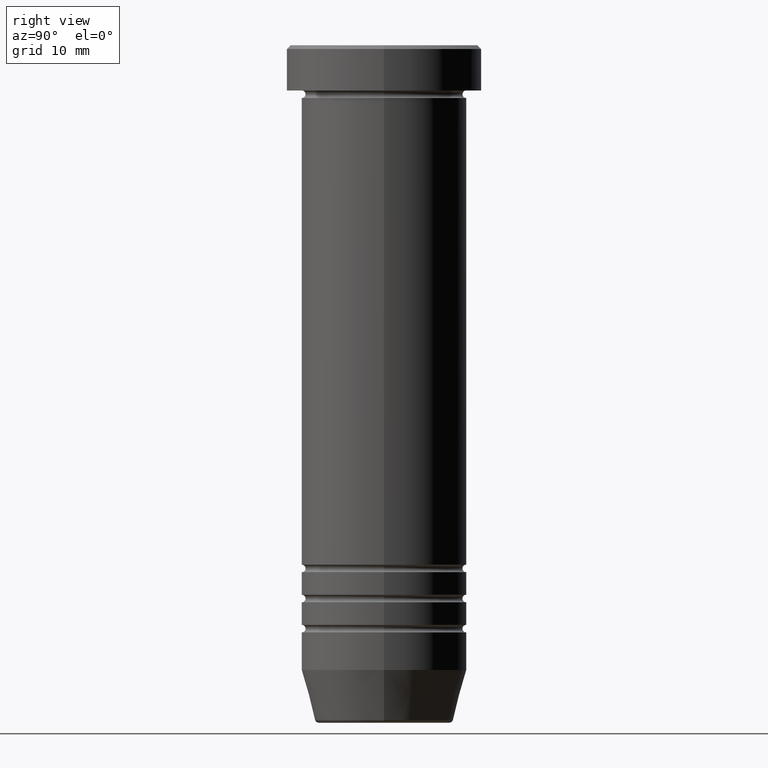
[diagram: clean part render]
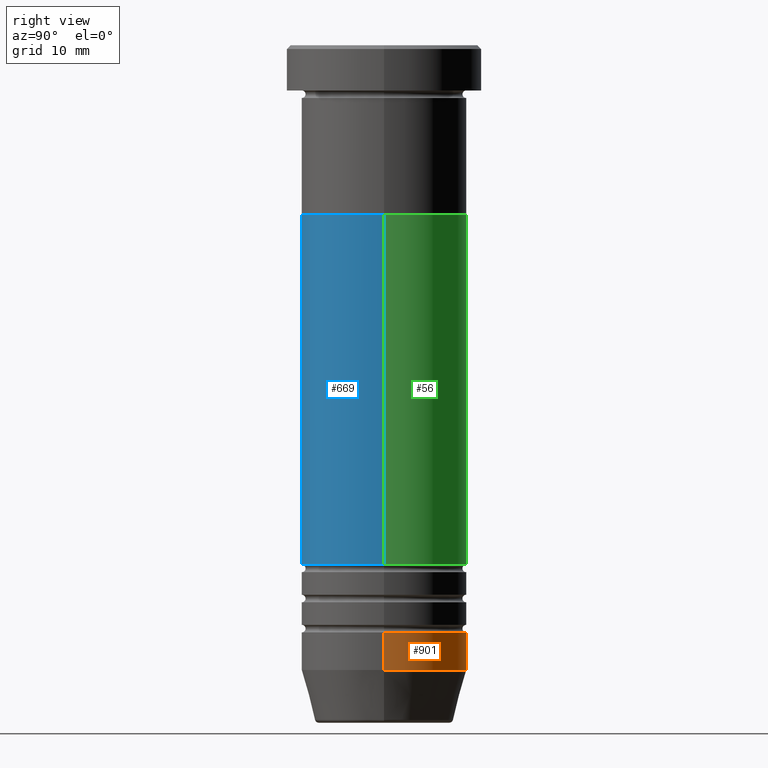
[diagram: same view with three faces highlighted in distinct colors, each labeled with its STEP entity id]
A machine part, right view with three faces highlighted in distinct colors.
Their STEP definitions:

[orange] entity #901 — the highlighted cylindrical surface (partial cylindrical patch) has radius 11 mm, axis along (-0, -0, 1).
#10 = LINE ( 'NONE', #752, #708 ) ;
#21 = VERTEX_POINT ( 'NONE', #265 ) ;
#29 = DIRECTION ( 'NONE',  ( 1.000000000000000000, 0.000000000000000000, 0.000000000000000000 ) ) ;
#60 = ORIENTED_EDGE ( 'NONE', *, *, #742, .T. ) ;
#105 = DIRECTION ( 'NONE',  ( -0.000000000000000000, -0.000000000000000000, 1.000000000000000000 ) ) ;
#114 = CARTESIAN_POINT ( 'NONE',  ( 11.00000000000000000, 0.000000000000000000, 0.000000000000000000 ) ) ;
#118 = DIRECTION ( 'NONE',  ( -0.000000000000000000, -0.000000000000000000, 1.000000000000000000 ) ) ;
#128 = VERTEX_POINT ( 'NONE', #317 ) ;
#159 = DIRECTION ( 'NONE',  ( -0.000000000000000000, -0.000000000000000000, 1.000000000000000000 ) ) ;
#222 = CARTESIAN_POINT ( 'NONE',  ( -11.00000000000000000, 1.347111479062088405E-15, -82.99999999999998579 ) ) ;
#265 = CARTESIAN_POINT ( 'NONE',  ( -11.00000000000000000, 1.347111479062088405E-15, -77.99999999999998579 ) ) ;
#295 = CIRCLE ( 'NONE', #484, 11.00000000000000000 ) ;
#317 = CARTESIAN_POINT ( 'NONE',  ( 11.00000000000000000, 0.000000000000000000, -77.99999999999998579 ) ) ;
#327 = ORIENTED_EDGE ( 'NONE', *, *, #876, .F. ) ;
#355 = CARTESIAN_POINT ( 'NONE',  ( 0.000000000000000000, 0.000000000000000000, -82.99999999999998579 ) ) ;
#484 = AXIS2_PLACEMENT_3D ( 'NONE', #609, #118, #687 ) ;
#509 = VERTEX_POINT ( 'NONE', #222 ) ;
#517 = CYLINDRICAL_SURFACE ( 'NONE', #896, 11.00000000000000000 ) ;
#598 = DIRECTION ( 'NONE',  ( 1.000000000000000000, 0.000000000000000000, 0.000000000000000000 ) ) ;
#607 = VECTOR ( 'NONE', #875, 1000.000000000000000 ) ;
#609 = CARTESIAN_POINT ( 'NONE',  ( 0.000000000000000000, 0.000000000000000000, -77.99999999999998579 ) ) ;
#614 = FACE_OUTER_BOUND ( 'NONE', #659, .T. ) ;
#659 = EDGE_LOOP ( 'NONE', ( #1005, #60, #327, #807 ) ) ;
#680 = DIRECTION ( 'NONE',  ( -0.000000000000000000, -0.000000000000000000, 1.000000000000000000 ) ) ;
#687 = DIRECTION ( 'NONE',  ( 1.000000000000000000, 0.000000000000000000, 0.000000000000000000 ) ) ;
#708 = VECTOR ( 'NONE', #159, 1000.000000000000000 ) ;
#709 = CIRCLE ( 'NONE', #1033, 11.00000000000000000 ) ;
#742 = EDGE_CURVE ( 'NONE', #509, #21, #10, .T. ) ;
#752 = CARTESIAN_POINT ( 'NONE',  ( -11.00000000000000000, 1.347111479062088405E-15, 0.000000000000000000 ) ) ;
#800 = CARTESIAN_POINT ( 'NONE',  ( 11.00000000000000000, 0.000000000000000000, -82.99999999999998579 ) ) ;
#807 = ORIENTED_EDGE ( 'NONE', *, *, #930, .F. ) ;
#817 = EDGE_CURVE ( 'NONE', #1037, #509, #709, .T. ) ;
#846 = CARTESIAN_POINT ( 'NONE',  ( 0.000000000000000000, 0.000000000000000000, 0.000000000000000000 ) ) ;
#863 = LINE ( 'NONE', #114, #607 ) ;
#875 = DIRECTION ( 'NONE',  ( -0.000000000000000000, -0.000000000000000000, 1.000000000000000000 ) ) ;
#876 = EDGE_CURVE ( 'NONE', #128, #21, #295, .T. ) ;
#896 = AXIS2_PLACEMENT_3D ( 'NONE', #846, #105, #29 ) ;
#901 = ADVANCED_FACE ( 'NONE', ( #614 ), #517, .T. ) ;
#930 = EDGE_CURVE ( 'NONE', #1037, #128, #863, .T. ) ;
#1005 = ORIENTED_EDGE ( 'NONE', *, *, #817, .T. ) ;
#1033 = AXIS2_PLACEMENT_3D ( 'NONE', #355, #680, #598 ) ;
#1037 = VERTEX_POINT ( 'NONE', #800 ) ;

[blue] entity #669 — the highlighted cylindrical surface (partial cylindrical patch) has radius 11 mm, axis along (-0, -0, 1).
#69 = AXIS2_PLACEMENT_3D ( 'NONE', #96, #682, #211 ) ;
#71 = FACE_OUTER_BOUND ( 'NONE', #512, .T. ) ;
#96 = CARTESIAN_POINT ( 'NONE',  ( 0.000000000000000000, 0.000000000000000000, -22.50000000000000000 ) ) ;
#107 = VERTEX_POINT ( 'NONE', #1021 ) ;
#137 = VERTEX_POINT ( 'NONE', #567 ) ;
#180 = ORIENTED_EDGE ( 'NONE', *, *, #978, .T. ) ;
#211 = DIRECTION ( 'NONE',  ( 1.000000000000000000, 0.000000000000000000, 0.000000000000000000 ) ) ;
#257 = VECTOR ( 'NONE', #990, 1000.000000000000000 ) ;
#312 = AXIS2_PLACEMENT_3D ( 'NONE', #829, #735, #995 ) ;
#396 = CIRCLE ( 'NONE', #740, 10.99999999999999289 ) ;
#398 = LINE ( 'NONE', #549, #537 ) ;
#406 = EDGE_CURVE ( 'NONE', #951, #583, #1002, .T. ) ;
#426 = CYLINDRICAL_SURFACE ( 'NONE', #312, 10.99999999999999645 ) ;
#435 = ORIENTED_EDGE ( 'NONE', *, *, #406, .F. ) ;
#476 = CARTESIAN_POINT ( 'NONE',  ( 0.000000000000000000, 0.000000000000000000, -68.99999999999998579 ) ) ;
#490 = EDGE_CURVE ( 'NONE', #107, #951, #398, .T. ) ;
#504 = LINE ( 'NONE', #816, #257 ) ;
#512 = EDGE_LOOP ( 'NONE', ( #767, #180, #615, #435 ) ) ;
#537 = VECTOR ( 'NONE', #966, 1000.000000000000000 ) ;
#545 = CARTESIAN_POINT ( 'NONE',  ( -10.99999999999999822, 1.347111479062088405E-15, -22.50000000000000000 ) ) ;
#549 = CARTESIAN_POINT ( 'NONE',  ( -10.99999999999999645, 1.347111479062088010E-15, 0.000000000000000000 ) ) ;
#567 = CARTESIAN_POINT ( 'NONE',  ( 10.99999999999999289, 0.000000000000000000, -68.99999999999998579 ) ) ;
#583 = VERTEX_POINT ( 'NONE', #714 ) ;
#615 = ORIENTED_EDGE ( 'NONE', *, *, #695, .T. ) ;
#628 = DIRECTION ( 'NONE',  ( -0.000000000000000000, -0.000000000000000000, 1.000000000000000000 ) ) ;
#669 = ADVANCED_FACE ( 'NONE', ( #71 ), #426, .T. ) ;
#682 = DIRECTION ( 'NONE',  ( -0.000000000000000000, -0.000000000000000000, 1.000000000000000000 ) ) ;
#695 = EDGE_CURVE ( 'NONE', #137, #583, #504, .T. ) ;
#714 = CARTESIAN_POINT ( 'NONE',  ( 11.00000000000000000, 0.000000000000000000, -22.50000000000000000 ) ) ;
#735 = DIRECTION ( 'NONE',  ( -0.000000000000000000, -0.000000000000000000, 1.000000000000000000 ) ) ;
#740 = AXIS2_PLACEMENT_3D ( 'NONE', #476, #628, #888 ) ;
#767 = ORIENTED_EDGE ( 'NONE', *, *, #490, .F. ) ;
#816 = CARTESIAN_POINT ( 'NONE',  ( 10.99999999999999645, 0.000000000000000000, 0.000000000000000000 ) ) ;
#829 = CARTESIAN_POINT ( 'NONE',  ( 0.000000000000000000, 0.000000000000000000, 0.000000000000000000 ) ) ;
#888 = DIRECTION ( 'NONE',  ( 1.000000000000000000, 0.000000000000000000, 0.000000000000000000 ) ) ;
#951 = VERTEX_POINT ( 'NONE', #545 ) ;
#966 = DIRECTION ( 'NONE',  ( -0.000000000000000000, -0.000000000000000000, 1.000000000000000000 ) ) ;
#978 = EDGE_CURVE ( 'NONE', #107, #137, #396, .T. ) ;
#990 = DIRECTION ( 'NONE',  ( -0.000000000000000000, -0.000000000000000000, 1.000000000000000000 ) ) ;
#995 = DIRECTION ( 'NONE',  ( 1.000000000000000000, 0.000000000000000000, 0.000000000000000000 ) ) ;
#1002 = CIRCLE ( 'NONE', #69, 11.00000000000000000 ) ;
#1021 = CARTESIAN_POINT ( 'NONE',  ( -10.99999999999999289, 1.347111479062087813E-15, -68.99999999999998579 ) ) ;

[green] entity #56 — the highlighted cylindrical surface (partial cylindrical patch) has radius 11 mm, axis along (-0, -0, 1).
#6 = DIRECTION ( 'NONE',  ( 1.000000000000000000, 0.000000000000000000, 0.000000000000000000 ) ) ;
#56 = ADVANCED_FACE ( 'NONE', ( #191 ), #224, .T. ) ;
#99 = AXIS2_PLACEMENT_3D ( 'NONE', #893, #741, #6 ) ;
#107 = VERTEX_POINT ( 'NONE', #1021 ) ;
#137 = VERTEX_POINT ( 'NONE', #567 ) ;
#191 = FACE_OUTER_BOUND ( 'NONE', #916, .T. ) ;
#223 = AXIS2_PLACEMENT_3D ( 'NONE', #694, #944, #887 ) ;
#224 = CYLINDRICAL_SURFACE ( 'NONE', #223, 10.99999999999999645 ) ;
#241 = AXIS2_PLACEMENT_3D ( 'NONE', #360, #268, #929 ) ;
#257 = VECTOR ( 'NONE', #990, 1000.000000000000000 ) ;
#264 = ORIENTED_EDGE ( 'NONE', *, *, #695, .F. ) ;
#268 = DIRECTION ( 'NONE',  ( -0.000000000000000000, -0.000000000000000000, 1.000000000000000000 ) ) ;
#348 = ORIENTED_EDGE ( 'NONE', *, *, #490, .T. ) ;
#360 = CARTESIAN_POINT ( 'NONE',  ( 0.000000000000000000, 0.000000000000000000, -68.99999999999998579 ) ) ;
#398 = LINE ( 'NONE', #549, #537 ) ;
#418 = EDGE_CURVE ( 'NONE', #137, #107, #574, .T. ) ;
#451 = CIRCLE ( 'NONE', #99, 11.00000000000000000 ) ;
#490 = EDGE_CURVE ( 'NONE', #107, #951, #398, .T. ) ;
#504 = LINE ( 'NONE', #816, #257 ) ;
#537 = VECTOR ( 'NONE', #966, 1000.000000000000000 ) ;
#545 = CARTESIAN_POINT ( 'NONE',  ( -10.99999999999999822, 1.347111479062088405E-15, -22.50000000000000000 ) ) ;
#549 = CARTESIAN_POINT ( 'NONE',  ( -10.99999999999999645, 1.347111479062088010E-15, 0.000000000000000000 ) ) ;
#567 = CARTESIAN_POINT ( 'NONE',  ( 10.99999999999999289, 0.000000000000000000, -68.99999999999998579 ) ) ;
#574 = CIRCLE ( 'NONE', #241, 10.99999999999999289 ) ;
#583 = VERTEX_POINT ( 'NONE', #714 ) ;
#601 = ORIENTED_EDGE ( 'NONE', *, *, #418, .T. ) ;
#649 = ORIENTED_EDGE ( 'NONE', *, *, #685, .F. ) ;
#685 = EDGE_CURVE ( 'NONE', #583, #951, #451, .T. ) ;
#694 = CARTESIAN_POINT ( 'NONE',  ( 0.000000000000000000, 0.000000000000000000, 0.000000000000000000 ) ) ;
#695 = EDGE_CURVE ( 'NONE', #137, #583, #504, .T. ) ;
#714 = CARTESIAN_POINT ( 'NONE',  ( 11.00000000000000000, 0.000000000000000000, -22.50000000000000000 ) ) ;
#741 = DIRECTION ( 'NONE',  ( -0.000000000000000000, -0.000000000000000000, 1.000000000000000000 ) ) ;
#816 = CARTESIAN_POINT ( 'NONE',  ( 10.99999999999999645, 0.000000000000000000, 0.000000000000000000 ) ) ;
#887 = DIRECTION ( 'NONE',  ( 1.000000000000000000, 0.000000000000000000, 0.000000000000000000 ) ) ;
#893 = CARTESIAN_POINT ( 'NONE',  ( 0.000000000000000000, 0.000000000000000000, -22.50000000000000000 ) ) ;
#916 = EDGE_LOOP ( 'NONE', ( #601, #348, #649, #264 ) ) ;
#929 = DIRECTION ( 'NONE',  ( 1.000000000000000000, 0.000000000000000000, 0.000000000000000000 ) ) ;
#944 = DIRECTION ( 'NONE',  ( -0.000000000000000000, -0.000000000000000000, 1.000000000000000000 ) ) ;
#951 = VERTEX_POINT ( 'NONE', #545 ) ;
#966 = DIRECTION ( 'NONE',  ( -0.000000000000000000, -0.000000000000000000, 1.000000000000000000 ) ) ;
#990 = DIRECTION ( 'NONE',  ( -0.000000000000000000, -0.000000000000000000, 1.000000000000000000 ) ) ;
#1021 = CARTESIAN_POINT ( 'NONE',  ( -10.99999999999999289, 1.347111479062087813E-15, -68.99999999999998579 ) ) ;